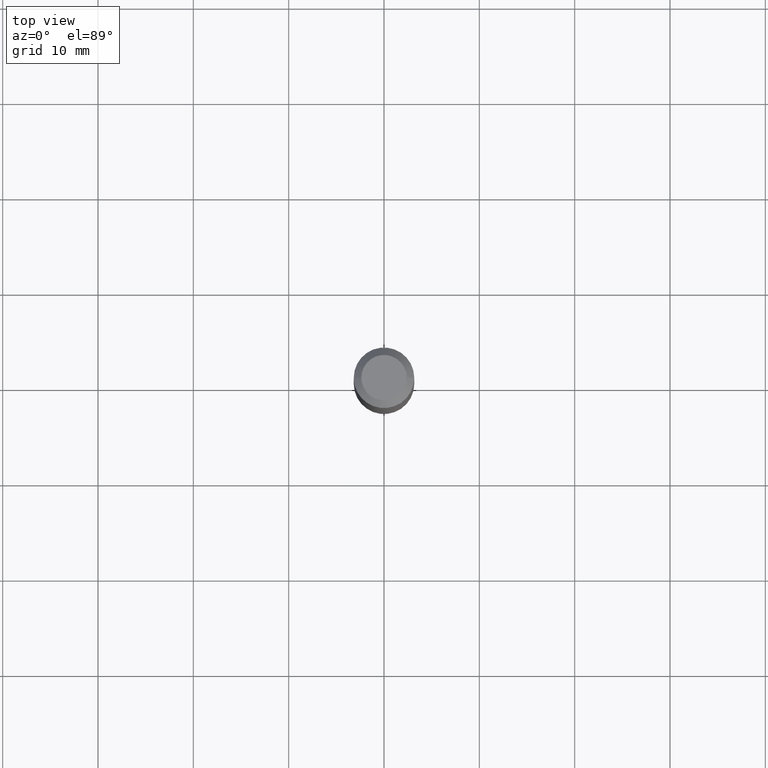
[diagram: clean part render]
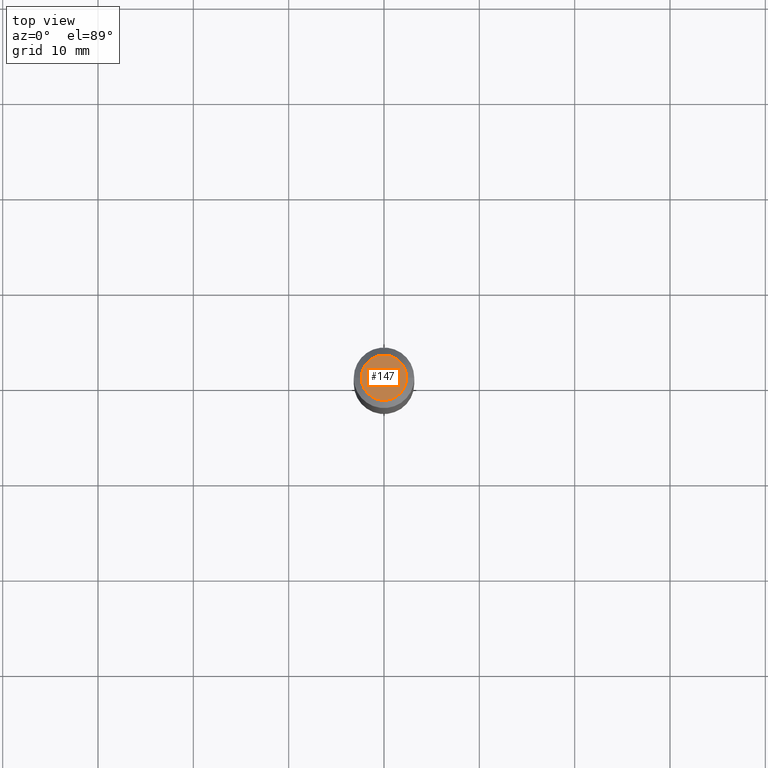
[diagram: same view with one face highlighted and labeled with its STEP entity id]
A machine part, top view. The second image highlights one B-rep face of the part: STEP entity #147.
In plain terms, the highlighted planar face has unit normal (0, -0, -1).
Its self-contained STEP definition (entity closure, byte-faithful):
#62 = AXIS2_PLACEMENT_3D ( 'NONE', #393, #78, #144 ) ;
#78 = DIRECTION ( 'NONE',  ( 2.438088387897960049E-29, -3.491481338843145188E-15, -1.000000000000000000 ) ) ;
#86 = CIRCLE ( 'NONE', #345, 0.09374999999999956979 ) ;
#88 = ORIENTED_EDGE ( 'NONE', *, *, #365, .T. ) ;
#126 = ORIENTED_EDGE ( 'NONE', *, *, #282, .T. ) ;
#144 = DIRECTION ( 'NONE',  ( -1.000000000000000000, 6.982962677686265922E-15, -4.876176775795935793E-29 ) ) ;
#147 = ADVANCED_FACE ( 'NONE', ( #291 ), #254, .F. ) ;
#162 = DIRECTION ( 'NONE',  ( 1.000000000000000000, -6.982962677686265922E-15, 4.885088446865703771E-29 ) ) ;
#183 = CARTESIAN_POINT ( 'NONE',  ( -5.433005188967878147E-45, 7.756891514274027489E-31, 2.221662028657488629E-16 ) ) ;
#194 = VERTEX_POINT ( 'NONE', #298 ) ;
#206 = CIRCLE ( 'NONE', #426, 0.09374999999999956979 ) ;
#225 = DIRECTION ( 'NONE',  ( -2.445468806185136597E-29, 3.491481338843145583E-15, 1.000000000000000000 ) ) ;
#232 = CARTESIAN_POINT ( 'NONE',  ( 0.09374999999999956979, -8.049213644256838428E-16, 2.221662028657539905E-16 ) ) ;
#254 = PLANE ( 'NONE',  #62 ) ;
#270 = EDGE_LOOP ( 'NONE', ( #126, #88 ) ) ;
#282 = EDGE_CURVE ( 'NONE', #194, #439, #86, .T. ) ;
#291 = FACE_OUTER_BOUND ( 'NONE', #270, .T. ) ;
#298 = CARTESIAN_POINT ( 'NONE',  ( -0.09374999999999956979, 7.092071469525100823E-16, 2.221662028657441297E-16 ) ) ;
#345 = AXIS2_PLACEMENT_3D ( 'NONE', #183, #225, #438 ) ;
#365 = EDGE_CURVE ( 'NONE', #439, #194, #206, .T. ) ;
#370 = CARTESIAN_POINT ( 'NONE',  ( -5.433005188967878147E-45, 7.756891514274027489E-31, 2.221662028657488629E-16 ) ) ;
#377 = DIRECTION ( 'NONE',  ( -2.445468806185136597E-29, 3.491481338843145583E-15, 1.000000000000000000 ) ) ;
#393 = CARTESIAN_POINT ( 'NONE',  ( -2.716502594483939074E-45, 3.878445757137013744E-31, 1.110831014328744314E-16 ) ) ;
#426 = AXIS2_PLACEMENT_3D ( 'NONE', #370, #377, #162 ) ;
#438 = DIRECTION ( 'NONE',  ( 1.000000000000000000, -6.982962677686265922E-15, 4.885088446865703771E-29 ) ) ;
#439 = VERTEX_POINT ( 'NONE', #232 ) ;